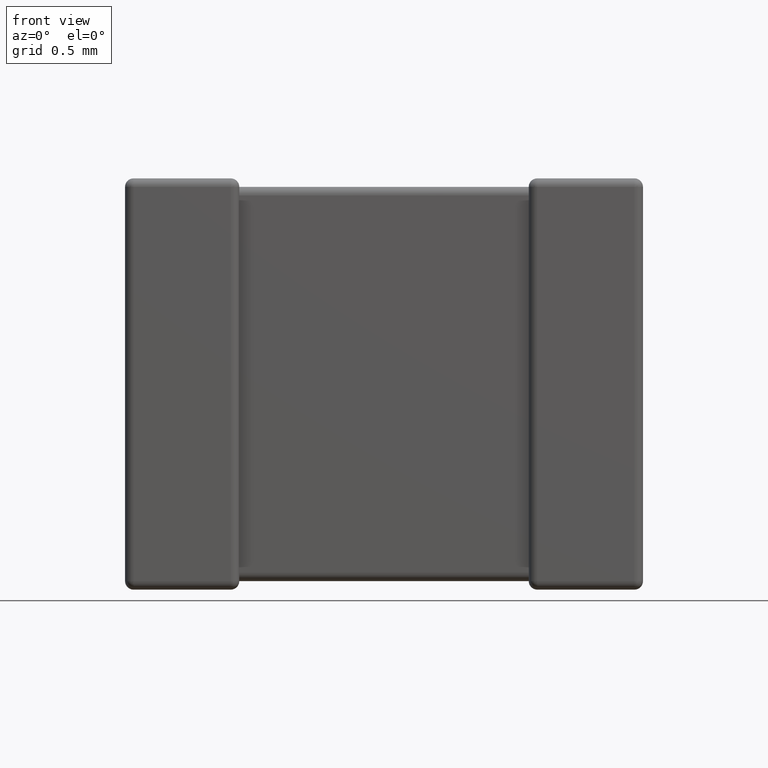
[diagram: clean part render]
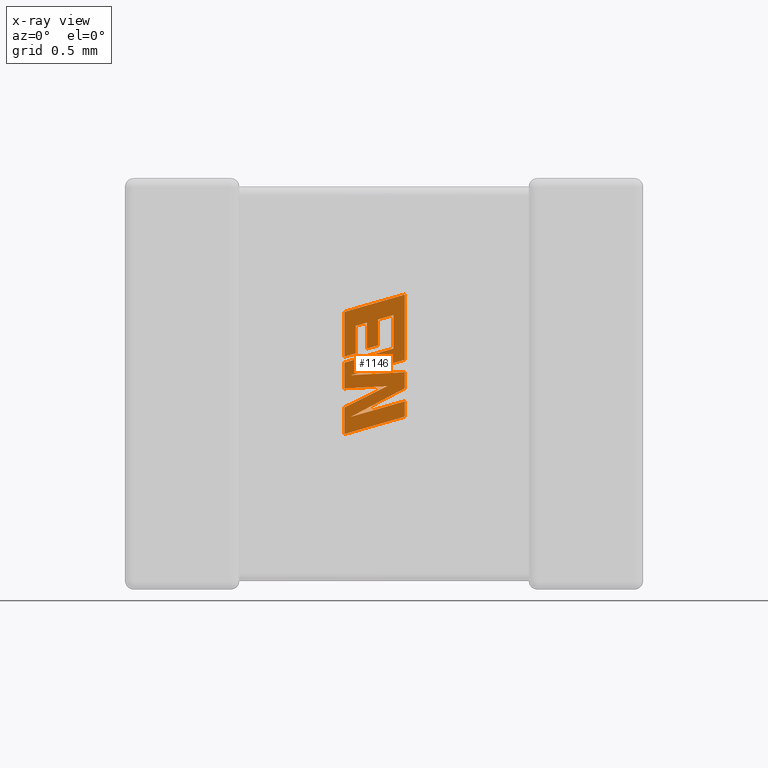
[diagram: x-ray — body ghosted, one internal face saturated and labeled with its STEP entity id]
A machine part, front view, then the same camera in x-ray: the body is ghosted and one INTERNAL B-rep face — a face not visible from any outside direction — is saturated and labeled: STEP entity #1146.
In plain terms, the highlighted planar face has unit normal (0, -1, 0).
Its self-contained STEP definition (entity closure, byte-faithful):
#31 = CARTESIAN_POINT ( 'NONE',  ( 1.439070229052686667, 1.993840000000000279, -1.210758909182688026 ) ) ;
#40 = LINE ( 'NONE', #2930, #4206 ) ;
#78 = CARTESIAN_POINT ( 'NONE',  ( 1.439070229052686667, 1.993840000000000279, -1.171167553601791367 ) ) ;
#98 = VECTOR ( 'NONE', #3179, 1000.000000000000227 ) ;
#99 = VECTOR ( 'NONE', #159, 1000.000000000000000 ) ;
#108 = CARTESIAN_POINT ( 'NONE',  ( 1.439070229052686667, 1.993840000000000279, -1.379797255758040908 ) ) ;
#154 = ORIENTED_EDGE ( 'NONE', *, *, #3164, .F. ) ;
#159 = DIRECTION ( 'NONE',  ( 0.000000000000000000, 0.000000000000000000, -1.000000000000000000 ) ) ;
#177 = VERTEX_POINT ( 'NONE', #1271 ) ;
#248 = EDGE_CURVE ( 'NONE', #177, #1207, #377, .T. ) ;
#254 = EDGE_CURVE ( 'NONE', #3860, #1513, #2530, .T. ) ;
#277 = DIRECTION ( 'NONE',  ( -0.9601763114327565019, 0.000000000000000000, -0.2793947940878394043 ) ) ;
#282 = EDGE_LOOP ( 'NONE', ( #2709, #154, #1291, #385, #2276, #808, #2401, #1415, #657, #875, #2772, #3334, #4412, #1079, #2602, #2096, #1744, #4628, #3992, #2458, #1683, #542, #4088 ) ) ;
#357 = DIRECTION ( 'NONE',  ( 0.000000000000000000, -1.000000000000000000, 0.000000000000000000 ) ) ;
#370 = LINE ( 'NONE', #2926, #935 ) ;
#377 = LINE ( 'NONE', #4348, #4402 ) ;
#378 = CARTESIAN_POINT ( 'NONE',  ( 1.836000000000006738, 1.993840000000000279, -1.378798892409895727 ) ) ;
#380 = CARTESIAN_POINT ( 'NONE',  ( 1.760483870298813924, 1.993840000000000279, -0.8983367201675375169 ) ) ;
#385 = ORIENTED_EDGE ( 'NONE', *, *, #3621, .F. ) ;
#397 = CARTESIAN_POINT ( 'NONE',  ( 1.836000000000006738, 1.993840000000000279, -1.191324096069252159 ) ) ;
#418 = CARTESIAN_POINT ( 'NONE',  ( 1.661831346058584735, 1.993840000000000279, -1.096788329672133688 ) ) ;
#442 = LINE ( 'NONE', #2284, #863 ) ;
#476 = VECTOR ( 'NONE', #660, 1000.000000000000000 ) ;
#542 = ORIENTED_EDGE ( 'NONE', *, *, #1672, .F. ) ;
#630 = EDGE_CURVE ( 'NONE', #3655, #2552, #4072, .T. ) ;
#657 = ORIENTED_EDGE ( 'NONE', *, *, #4465, .F. ) ;
#660 = DIRECTION ( 'NONE',  ( 0.000000000000000000, 0.000000000000000000, 1.000000000000000000 ) ) ;
#679 = DIRECTION ( 'NONE',  ( 0.000000000000000000, 0.000000000000000000, -1.000000000000000000 ) ) ;
#689 = DIRECTION ( 'NONE',  ( -0.9985542843760948362, 0.000000000000000000, -0.05375259206908063886 ) ) ;
#709 = VECTOR ( 'NONE', #2093, 1000.000000000000114 ) ;
#762 = DIRECTION ( 'NONE',  ( 0.9610853065513847993, 0.000000000000000000, 0.2762517575166370531 ) ) ;
#808 = ORIENTED_EDGE ( 'NONE', *, *, #248, .F. ) ;
#813 = LINE ( 'NONE', #3402, #99 ) ;
#836 = CARTESIAN_POINT ( 'NONE',  ( 1.836000000000006738, 1.993840000000000279, -1.464279240854371889 ) ) ;
#846 = VECTOR ( 'NONE', #3047, 1000.000000000000000 ) ;
#863 = VECTOR ( 'NONE', #1882, 1000.000000000000114 ) ;
#875 = ORIENTED_EDGE ( 'NONE', *, *, #4439, .F. ) ;
#912 = EDGE_CURVE ( 'NONE', #1498, #3860, #2939, .T. ) ;
#932 = VECTOR ( 'NONE', #4665, 1000.000000000000000 ) ;
#935 = VECTOR ( 'NONE', #1827, 1000.000000000000000 ) ;
#953 = VERTEX_POINT ( 'NONE', #3014 ) ;
#983 = DIRECTION ( 'NONE',  ( 0.000000000000000000, 0.000000000000000000, 1.000000000000000000 ) ) ;
#1024 = CARTESIAN_POINT ( 'NONE',  ( 1.439070229052686667, 1.993840000000000279, -1.679265467217702534 ) ) ;
#1032 = VERTEX_POINT ( 'NONE', #2395 ) ;
#1033 = CARTESIAN_POINT ( 'NONE',  ( 1.439070229052686667, 1.993840000000000279, -1.505174769309383320 ) ) ;
#1043 = CARTESIAN_POINT ( 'NONE',  ( 1.480922120208878701, 1.993840000000000279, -1.566245929904677148 ) ) ;
#1052 = FACE_OUTER_BOUND ( 'NONE', #282, .T. ) ;
#1077 = EDGE_CURVE ( 'NONE', #4516, #3154, #3149, .T. ) ;
#1079 = ORIENTED_EDGE ( 'NONE', *, *, #4357, .F. ) ;
#1091 = CARTESIAN_POINT ( 'NONE',  ( 1.482623858147629869, 1.993840000000000279, -1.292788712082211244 ) ) ;
#1146 = ADVANCED_FACE ( 'NONE', ( #1052 ), #3239, .T. ) ;
#1161 = VERTEX_POINT ( 'NONE', #4397 ) ;
#1165 = CARTESIAN_POINT ( 'NONE',  ( 1.439070229052686667, 1.993840000000000279, -0.8779291408648176587 ) ) ;
#1207 = VERTEX_POINT ( 'NONE', #378 ) ;
#1214 = CARTESIAN_POINT ( 'NONE',  ( 1.482623858147629869, 1.993840000000000279, -1.292788712082211244 ) ) ;
#1218 = VECTOR ( 'NONE', #4468, 1000.000000000000114 ) ;
#1263 = EDGE_CURVE ( 'NONE', #1207, #1701, #1534, .T. ) ;
#1271 = CARTESIAN_POINT ( 'NONE',  ( 1.836000000000006738, 1.993840000000000279, -1.272980965228251771 ) ) ;
#1291 = ORIENTED_EDGE ( 'NONE', *, *, #2418, .F. ) ;
#1374 = CARTESIAN_POINT ( 'NONE',  ( 1.661831346058584735, 1.993840000000000279, -1.096788329672133688 ) ) ;
#1377 = CARTESIAN_POINT ( 'NONE',  ( 1.439070229052686667, 1.993840000000000279, -1.505174769309383320 ) ) ;
#1403 = CARTESIAN_POINT ( 'NONE',  ( 1.836000000000006738, 1.993840000000000279, -1.191324096069252159 ) ) ;
#1404 = VECTOR ( 'NONE', #277, 1000.000000000000114 ) ;
#1415 = ORIENTED_EDGE ( 'NONE', *, *, #4521, .F. ) ;
#1424 = CARTESIAN_POINT ( 'NONE',  ( 1.836000000000006738, 1.993840000000000279, -0.7637087314246739922 ) ) ;
#1484 = DIRECTION ( 'NONE',  ( 0.000000000000000000, 0.000000000000000000, -1.000000000000000000 ) ) ;
#1498 = VERTEX_POINT ( 'NONE', #3233 ) ;
#1513 = VERTEX_POINT ( 'NONE', #1765 ) ;
#1524 = CARTESIAN_POINT ( 'NONE',  ( 1.439070229052686667, 1.993840000000000279, -1.379797255758040908 ) ) ;
#1534 = LINE ( 'NONE', #3052, #3265 ) ;
#1584 = CARTESIAN_POINT ( 'NONE',  ( 1.514623772849683636, 1.993840000000000279, -0.9688634990597322361 ) ) ;
#1602 = EDGE_CURVE ( 'NONE', #2110, #2013, #813, .T. ) ;
#1650 = CARTESIAN_POINT ( 'NONE',  ( 1.836000000000006738, 1.993840000000000279, -1.464279240854371889 ) ) ;
#1663 = EDGE_CURVE ( 'NONE', #2346, #177, #2232, .T. ) ;
#1672 = EDGE_CURVE ( 'NONE', #1513, #3655, #2490, .T. ) ;
#1683 = ORIENTED_EDGE ( 'NONE', *, *, #630, .F. ) ;
#1701 = VERTEX_POINT ( 'NONE', #1043 ) ;
#1744 = ORIENTED_EDGE ( 'NONE', *, *, #2243, .F. ) ;
#1765 = CARTESIAN_POINT ( 'NONE',  ( 1.722641957339287710, 1.993840000000000279, -1.364532471788447276 ) ) ;
#1766 = CARTESIAN_POINT ( 'NONE',  ( 1.588452647486523484, 1.993840000000000279, -0.9473805662053309540 ) ) ;
#1827 = DIRECTION ( 'NONE',  ( 0.000000000000000000, 0.000000000000000000, 1.000000000000000000 ) ) ;
#1835 = DIRECTION ( 'NONE',  ( -0.9611638845408968512, 0.000000000000000000, -0.2759782365590690567 ) ) ;
#1861 = DIRECTION ( 'NONE',  ( 0.000000000000000000, 0.000000000000000000, 1.000000000000000000 ) ) ;
#1864 = LINE ( 'NONE', #3642, #932 ) ;
#1866 = CARTESIAN_POINT ( 'NONE',  ( 1.439070229052686667, 1.993840000000000279, -0.8779291408648176587 ) ) ;
#1882 = DIRECTION ( 'NONE',  ( 0.9611542233438712390, 0.000000000000000000, 0.2760118818968482768 ) ) ;
#2013 = VERTEX_POINT ( 'NONE', #2511 ) ;
#2017 = VERTEX_POINT ( 'NONE', #1374 ) ;
#2056 = VECTOR ( 'NONE', #3691, 1000.000000000000114 ) ;
#2069 = LINE ( 'NONE', #1766, #1404 ) ;
#2093 = DIRECTION ( 'NONE',  ( -0.9610674221107078363, 0.000000000000000000, -0.2763139702539095244 ) ) ;
#2096 = ORIENTED_EDGE ( 'NONE', *, *, #2646, .F. ) ;
#2108 = EDGE_CURVE ( 'NONE', #3154, #1032, #3433, .T. ) ;
#2110 = VERTEX_POINT ( 'NONE', #1584 ) ;
#2111 = DIRECTION ( 'NONE',  ( 0.000000000000000000, 0.000000000000000000, -1.000000000000000000 ) ) ;
#2132 = CARTESIAN_POINT ( 'NONE',  ( 1.439070229052686667, 1.993840000000000279, -1.210758909182688026 ) ) ;
#2206 = LINE ( 'NONE', #418, #98 ) ;
#2232 = LINE ( 'NONE', #1091, #2056 ) ;
#2243 = EDGE_CURVE ( 'NONE', #1032, #2017, #1864, .T. ) ;
#2276 = ORIENTED_EDGE ( 'NONE', *, *, #1263, .F. ) ;
#2284 = CARTESIAN_POINT ( 'NONE',  ( 1.480922120208878701, 1.993840000000000279, -1.566245929904677148 ) ) ;
#2346 = VERTEX_POINT ( 'NONE', #1214 ) ;
#2395 = CARTESIAN_POINT ( 'NONE',  ( 1.661831346058584735, 1.993840000000000279, -0.9264455688293166125 ) ) ;
#2401 = ORIENTED_EDGE ( 'NONE', *, *, #1663, .F. ) ;
#2418 = EDGE_CURVE ( 'NONE', #2797, #1161, #4095, .T. ) ;
#2458 = ORIENTED_EDGE ( 'NONE', *, *, #2632, .F. ) ;
#2471 = DIRECTION ( 'NONE',  ( 0.000000000000000000, 0.000000000000000000, 1.000000000000000000 ) ) ;
#2473 = LINE ( 'NONE', #31, #3273 ) ;
#2490 = LINE ( 'NONE', #3943, #2820 ) ;
#2511 = CARTESIAN_POINT ( 'NONE',  ( 1.514623772849683636, 1.993840000000000279, -1.149708758874154357 ) ) ;
#2513 = AXIS2_PLACEMENT_3D ( 'NONE', #3603, #357, #679 ) ;
#2530 = LINE ( 'NONE', #1033, #4247 ) ;
#2552 = VERTEX_POINT ( 'NONE', #2132 ) ;
#2559 = LINE ( 'NONE', #3342, #3894 ) ;
#2602 = ORIENTED_EDGE ( 'NONE', *, *, #2617, .F. ) ;
#2617 = EDGE_CURVE ( 'NONE', #953, #3261, #370, .T. ) ;
#2632 = EDGE_CURVE ( 'NONE', #2552, #4516, #2473, .T. ) ;
#2646 = EDGE_CURVE ( 'NONE', #2017, #953, #2206, .T. ) ;
#2679 = VERTEX_POINT ( 'NONE', #78 ) ;
#2708 = VERTEX_POINT ( 'NONE', #1165 ) ;
#2709 = ORIENTED_EDGE ( 'NONE', *, *, #912, .F. ) ;
#2733 = VECTOR ( 'NONE', #1861, 1000.000000000000000 ) ;
#2772 = ORIENTED_EDGE ( 'NONE', *, *, #3174, .F. ) ;
#2793 = CARTESIAN_POINT ( 'NONE',  ( 1.836000000000006738, 1.993840000000000279, -1.565145231322540464 ) ) ;
#2797 = VERTEX_POINT ( 'NONE', #1650 ) ;
#2820 = VECTOR ( 'NONE', #689, 1000.000000000000114 ) ;
#2864 = VERTEX_POINT ( 'NONE', #1403 ) ;
#2926 = CARTESIAN_POINT ( 'NONE',  ( 1.588452647486523484, 1.993840000000000279, -1.117747465174933730 ) ) ;
#2930 = CARTESIAN_POINT ( 'NONE',  ( 1.836000000000006738, 1.993840000000000279, -1.120671798919335327 ) ) ;
#2939 = LINE ( 'NONE', #1024, #3185 ) ;
#2997 = EDGE_CURVE ( 'NONE', #2013, #2679, #2559, .T. ) ;
#3014 = CARTESIAN_POINT ( 'NONE',  ( 1.588452647486523484, 1.993840000000000279, -1.117747465174933730 ) ) ;
#3047 = DIRECTION ( 'NONE',  ( 0.000000000000000000, 0.000000000000000000, -1.000000000000000000 ) ) ;
#3052 = CARTESIAN_POINT ( 'NONE',  ( 1.836000000000006738, 1.993840000000000279, -1.378798892409895727 ) ) ;
#3149 = LINE ( 'NONE', #4229, #476 ) ;
#3154 = VERTEX_POINT ( 'NONE', #380 ) ;
#3164 = EDGE_CURVE ( 'NONE', #1161, #1498, #4579, .T. ) ;
#3174 = EDGE_CURVE ( 'NONE', #2679, #2708, #3192, .T. ) ;
#3179 = DIRECTION ( 'NONE',  ( -0.9615454294334448981, 0.000000000000000000, -0.2746459304917006627 ) ) ;
#3185 = VECTOR ( 'NONE', #2471, 1000.000000000000000 ) ;
#3192 = LINE ( 'NONE', #4231, #4120 ) ;
#3233 = CARTESIAN_POINT ( 'NONE',  ( 1.439070229052686667, 1.993840000000000279, -1.679265467217702534 ) ) ;
#3239 = PLANE ( 'NONE',  #2513 ) ;
#3261 = VERTEX_POINT ( 'NONE', #4428 ) ;
#3265 = VECTOR ( 'NONE', #3406, 1000.000000000000227 ) ;
#3273 = VECTOR ( 'NONE', #762, 1000.000000000000114 ) ;
#3310 = DIRECTION ( 'NONE',  ( 0.9610029908221285888, 0.000000000000000000, 0.2765379750249932211 ) ) ;
#3334 = ORIENTED_EDGE ( 'NONE', *, *, #2997, .F. ) ;
#3342 = CARTESIAN_POINT ( 'NONE',  ( 1.514623772849683636, 1.993840000000000279, -1.149708758874154357 ) ) ;
#3393 = DIRECTION ( 'NONE',  ( -0.9619530280415478085, 0.000000000000000000, -0.2732148821746301914 ) ) ;
#3402 = CARTESIAN_POINT ( 'NONE',  ( 1.514623772849683636, 1.993840000000000279, -0.9688634990597322361 ) ) ;
#3406 = DIRECTION ( 'NONE',  ( -0.8843386665637649191, 0.000000000000000000, -0.4668459304955137612 ) ) ;
#3433 = LINE ( 'NONE', #4513, #1218 ) ;
#3599 = LINE ( 'NONE', #1866, #3845 ) ;
#3603 = CARTESIAN_POINT ( 'NONE',  ( -0.8277549025643626823, 1.993840000000000279, 0.006109351898183301016 ) ) ;
#3621 = EDGE_CURVE ( 'NONE', #1701, #2797, #442, .T. ) ;
#3642 = CARTESIAN_POINT ( 'NONE',  ( 1.661831346058584735, 1.993840000000000279, -0.9264455688293166125 ) ) ;
#3643 = LINE ( 'NONE', #397, #3910 ) ;
#3655 = VERTEX_POINT ( 'NONE', #108 ) ;
#3672 = CARTESIAN_POINT ( 'NONE',  ( 1.760483870298813924, 1.993840000000000279, -1.118372642657951666 ) ) ;
#3691 = DIRECTION ( 'NONE',  ( 0.9984327301130250243, 0.000000000000000000, 0.05596501978067343341 ) ) ;
#3845 = VECTOR ( 'NONE', #3310, 1000.000000000000227 ) ;
#3860 = VERTEX_POINT ( 'NONE', #1377 ) ;
#3874 = VERTEX_POINT ( 'NONE', #1424 ) ;
#3894 = VECTOR ( 'NONE', #3393, 1000.000000000000114 ) ;
#3910 = VECTOR ( 'NONE', #1835, 1000.000000000000114 ) ;
#3943 = CARTESIAN_POINT ( 'NONE',  ( 1.722641957339287710, 1.993840000000000279, -1.364532471788447276 ) ) ;
#3992 = ORIENTED_EDGE ( 'NONE', *, *, #1077, .F. ) ;
#4072 = LINE ( 'NONE', #1524, #2733 ) ;
#4088 = ORIENTED_EDGE ( 'NONE', *, *, #254, .F. ) ;
#4095 = LINE ( 'NONE', #836, #846 ) ;
#4120 = VECTOR ( 'NONE', #983, 1000.000000000000000 ) ;
#4206 = VECTOR ( 'NONE', #1484, 1000.000000000000000 ) ;
#4229 = CARTESIAN_POINT ( 'NONE',  ( 1.760483870298813924, 1.993840000000000279, -1.118372642657951666 ) ) ;
#4231 = CARTESIAN_POINT ( 'NONE',  ( 1.439070229052686667, 1.993840000000000279, -1.171167553601791367 ) ) ;
#4247 = VECTOR ( 'NONE', #4370, 1000.000000000000114 ) ;
#4348 = CARTESIAN_POINT ( 'NONE',  ( 1.836000000000006738, 1.993840000000000279, -1.272980965228251771 ) ) ;
#4357 = EDGE_CURVE ( 'NONE', #3261, #2110, #2069, .T. ) ;
#4370 = DIRECTION ( 'NONE',  ( 0.8958676361826827250, 0.000000000000000000, 0.4443210308329467728 ) ) ;
#4397 = CARTESIAN_POINT ( 'NONE',  ( 1.836000000000006738, 1.993840000000000279, -1.565145231322540464 ) ) ;
#4402 = VECTOR ( 'NONE', #2111, 1000.000000000000000 ) ;
#4412 = ORIENTED_EDGE ( 'NONE', *, *, #1602, .F. ) ;
#4428 = CARTESIAN_POINT ( 'NONE',  ( 1.588452647486523484, 1.993840000000000279, -0.9473805662053309540 ) ) ;
#4439 = EDGE_CURVE ( 'NONE', #2708, #3874, #3599, .T. ) ;
#4465 = EDGE_CURVE ( 'NONE', #3874, #2864, #40, .T. ) ;
#4468 = DIRECTION ( 'NONE',  ( -0.9617234872620624708, 0.000000000000000000, -0.2740217765953968931 ) ) ;
#4513 = CARTESIAN_POINT ( 'NONE',  ( 1.760483870298813924, 1.993840000000000279, -0.8983367201675375169 ) ) ;
#4516 = VERTEX_POINT ( 'NONE', #3672 ) ;
#4521 = EDGE_CURVE ( 'NONE', #2864, #2346, #3643, .T. ) ;
#4579 = LINE ( 'NONE', #2793, #709 ) ;
#4628 = ORIENTED_EDGE ( 'NONE', *, *, #2108, .F. ) ;
#4665 = DIRECTION ( 'NONE',  ( 0.000000000000000000, 0.000000000000000000, -1.000000000000000000 ) ) ;